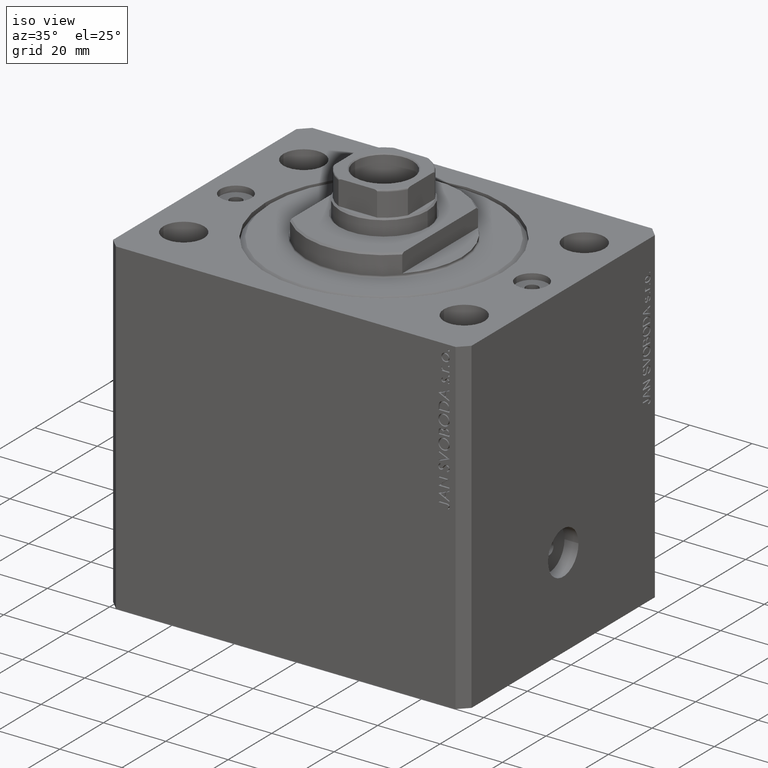
[diagram: clean part render]
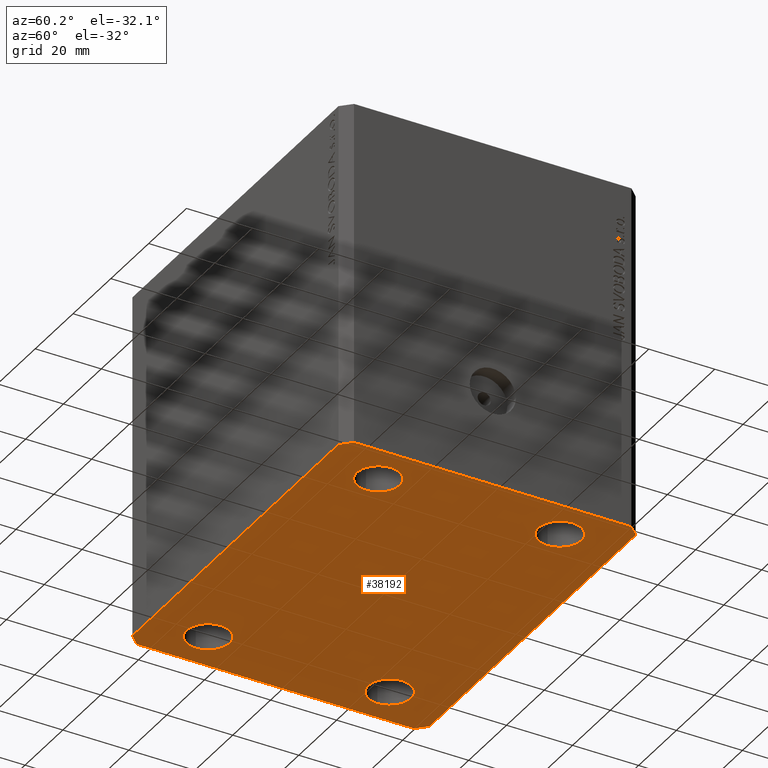
[diagram: tour spotlight — one face highlighted and labeled with its STEP entity id]
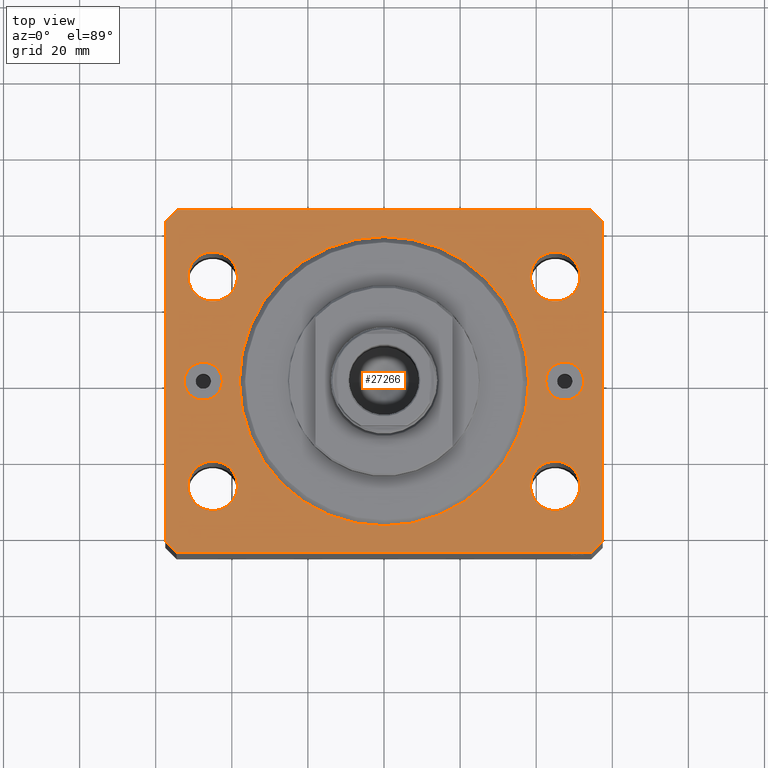
[diagram: tour spotlight — one face highlighted and labeled with its STEP entity id]
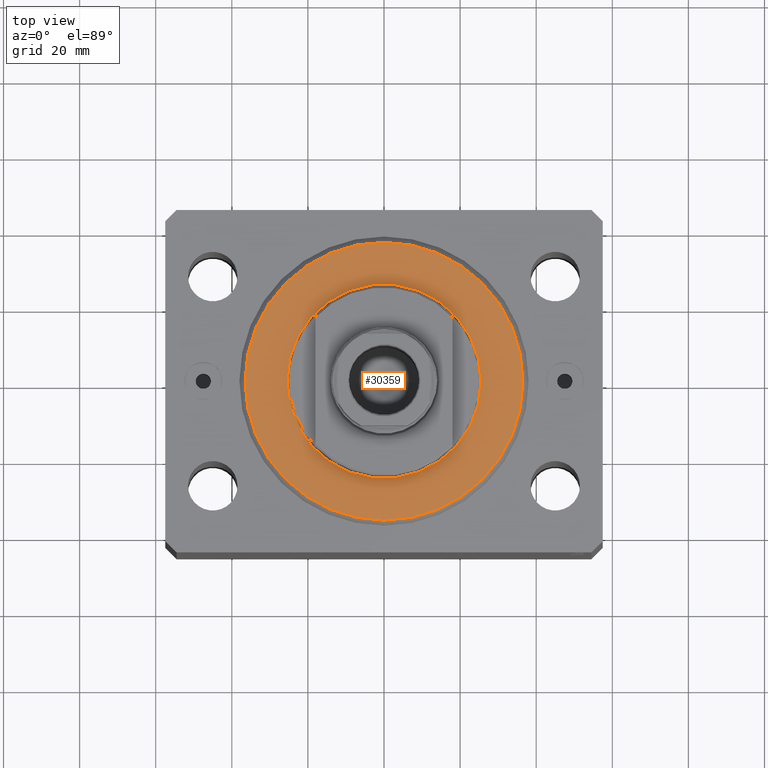
[diagram: tour spotlight — one face highlighted and labeled with its STEP entity id]
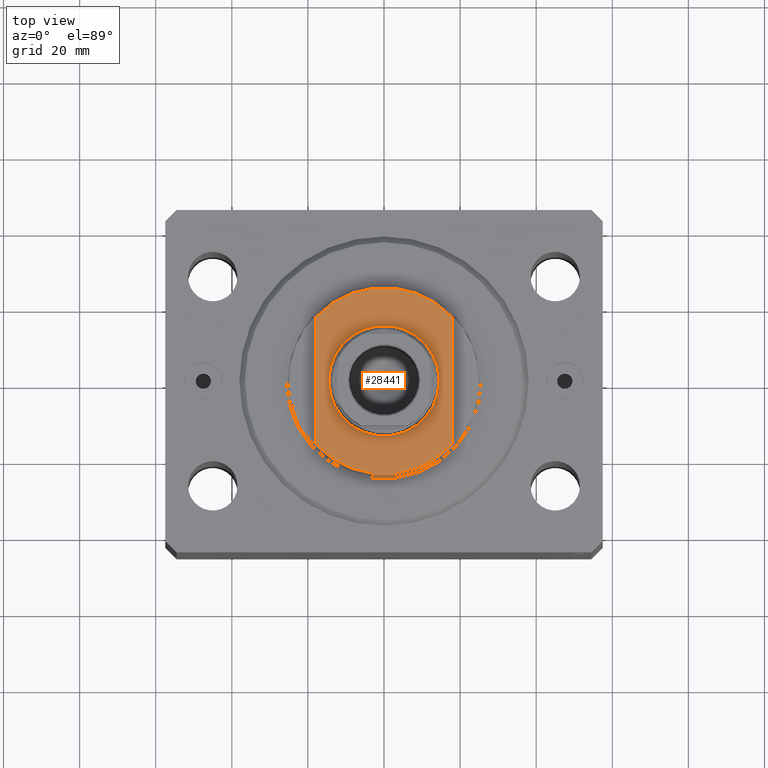
[diagram: tour spotlight — one face highlighted and labeled with its STEP entity id]
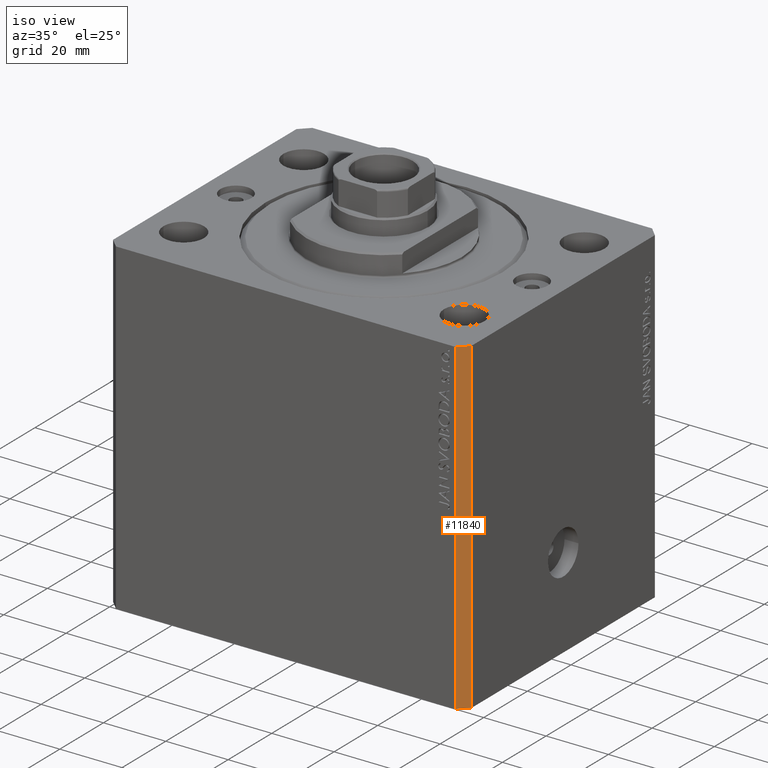
[diagram: tour spotlight — one face highlighted and labeled with its STEP entity id]
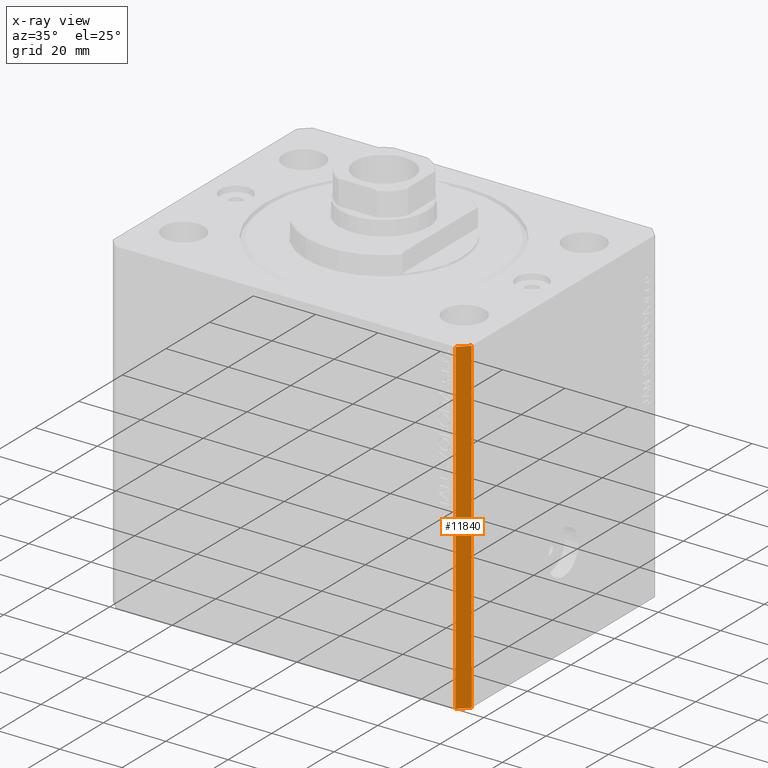
[diagram: x-ray of the same camera — body ghosted, this tour face saturated]
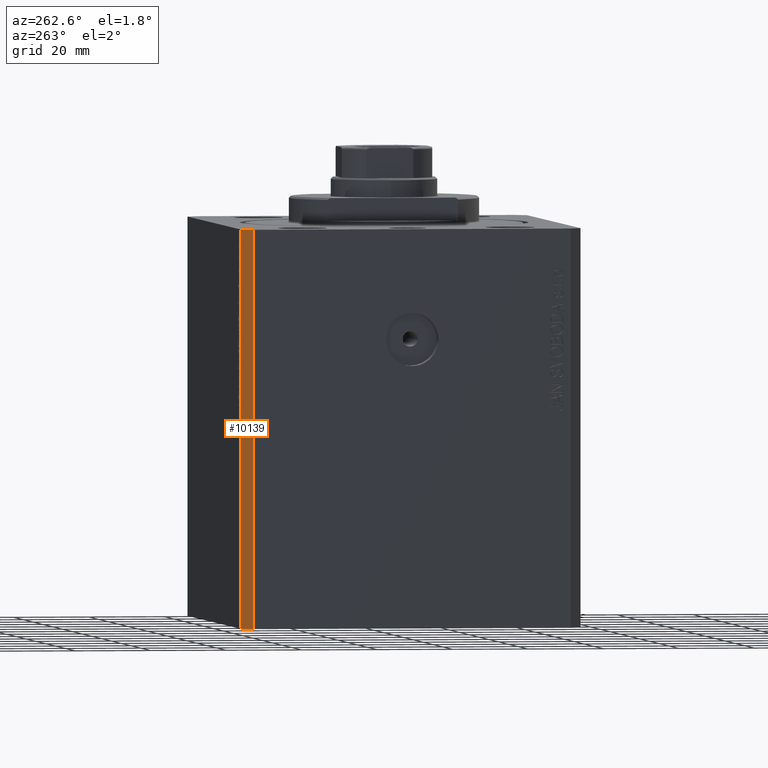
[diagram: tour spotlight — one face highlighted and labeled with its STEP entity id]
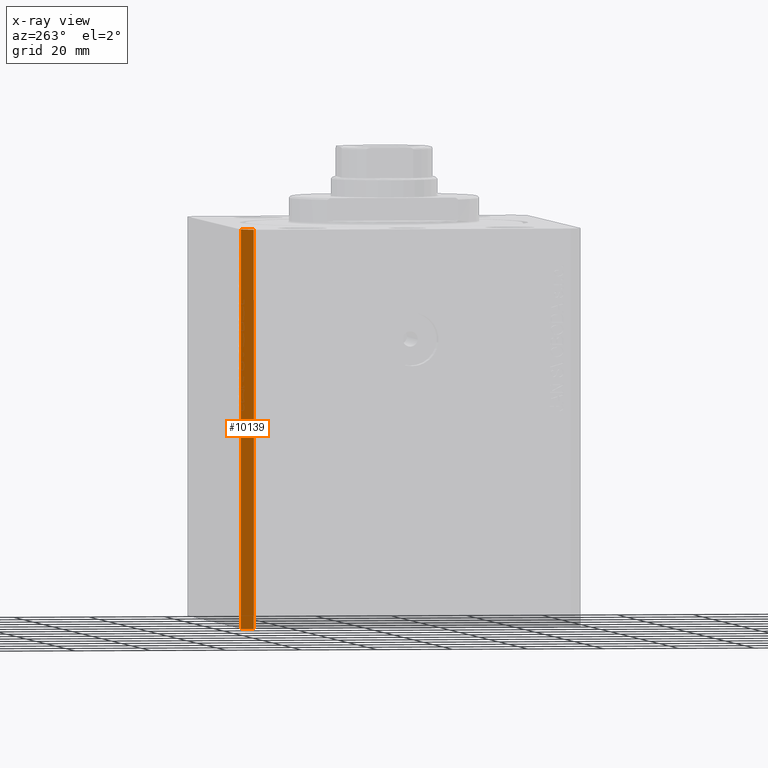
[diagram: x-ray of the same camera — body ghosted, this tour face saturated]
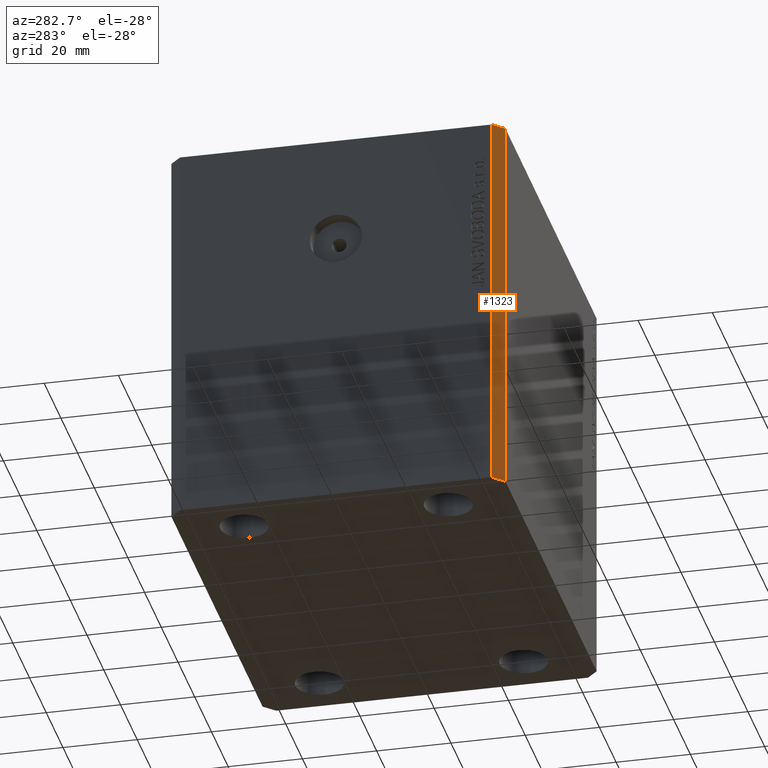
[diagram: tour spotlight — one face highlighted and labeled with its STEP entity id]
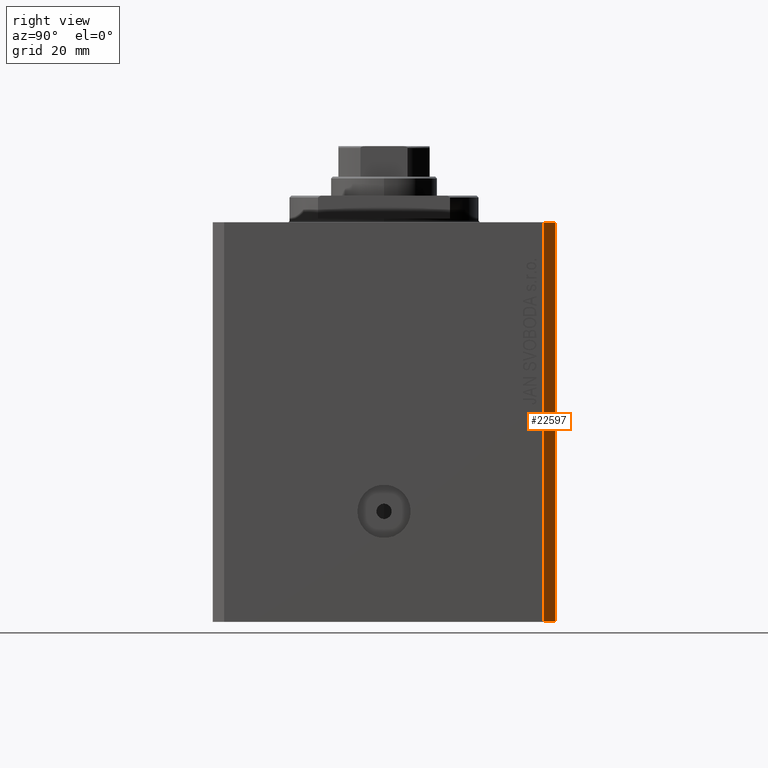
[diagram: tour spotlight — one face highlighted and labeled with its STEP entity id]
A machine part: a face-by-face anatomy tour. The part has 864 B-rep faces; the first image is the clean iso view, then the 8 largest visible faces are spotlighted one at a time (largest first), each with its STEP entity span.

Face 1 — auxiliary view, entity #38192. In plain terms, the highlighted planar face has unit normal (0, 0, 1).
Definition (entity closure, byte-faithful):
#327 = CIRCLE ( 'NONE', #41297, 6.499999999999999112 ) ;
#400 = EDGE_CURVE ( 'NONE', #7247, #11172, #11034, .T. ) ;
#498 = ORIENTED_EDGE ( 'NONE', *, *, #3355, .F. ) ;
#704 = VERTEX_POINT ( 'NONE', #23048 ) ;
#726 = VECTOR ( 'NONE', #38284, 1000.000000000000000 ) ;
#727 = LINE ( 'NONE', #7251, #17837 ) ;
#1185 = EDGE_CURVE ( 'NONE', #27263, #704, #8948, .T. ) ;
#1735 = DIRECTION ( 'NONE',  ( -0.000000000000000000, -0.000000000000000000, -1.000000000000000000 ) ) ;
#2196 = DIRECTION ( 'NONE',  ( -0.7071067811865369146, 0.7071067811865581199, 0.000000000000000000 ) ) ;
#2515 = VERTEX_POINT ( 'NONE', #8234 ) ;
#2905 = CARTESIAN_POINT ( 'NONE',  ( 45.00000000000000000, 27.49999999999999289, -105.0000000000000000 ) ) ;
#3206 = DIRECTION ( 'NONE',  ( 1.000000000000000000, 0.000000000000000000, 0.000000000000000000 ) ) ;
#3355 = EDGE_CURVE ( 'NONE', #14656, #39880, #13264, .T. ) ;
#3947 = FACE_OUTER_BOUND ( 'NONE', #7187, .T. ) ;
#4472 = CARTESIAN_POINT ( 'NONE',  ( -51.49999999999998579, -27.50000000000000355, -105.0000000000000000 ) ) ;
#5069 = CARTESIAN_POINT ( 'NONE',  ( -57.50000000000000711, -42.00000000000000711, -105.0000000000000000 ) ) ;
#5347 = LINE ( 'NONE', #19283, #33544 ) ;
#5822 = ORIENTED_EDGE ( 'NONE', *, *, #29806, .F. ) ;
#5866 = ORIENTED_EDGE ( 'NONE', *, *, #400, .F. ) ;
#6730 = ORIENTED_EDGE ( 'NONE', *, *, #11462, .F. ) ;
#6960 = CARTESIAN_POINT ( 'NONE',  ( 45.00000000000000000, 27.49999999999999289, -105.0000000000000000 ) ) ;
#7116 = DIRECTION ( 'NONE',  ( 1.000000000000000000, 0.000000000000000000, 0.000000000000000000 ) ) ;
#7187 = EDGE_LOOP ( 'NONE', ( #17640, #28319, #19253, #15829, #22296, #6730, #5822, #24768 ) ) ;
#7198 = CIRCLE ( 'NONE', #19449, 6.499999999999999112 ) ;
#7247 = VERTEX_POINT ( 'NONE', #21586 ) ;
#7251 = CARTESIAN_POINT ( 'NONE',  ( -54.49999999999999289, 45.00000000000000000, -105.0000000000000000 ) ) ;
#7389 = CARTESIAN_POINT ( 'NONE',  ( 57.50000000000000711, -41.99999999999998579, -105.0000000000000000 ) ) ;
#8018 = ORIENTED_EDGE ( 'NONE', *, *, #19653, .F. ) ;
#8234 = CARTESIAN_POINT ( 'NONE',  ( 38.50000000000000000, 27.49999999999999289, -105.0000000000000000 ) ) ;
#8948 = LINE ( 'NONE', #21783, #30448 ) ;
#9465 = DIRECTION ( 'NONE',  ( -0.000000000000000000, -0.000000000000000000, -1.000000000000000000 ) ) ;
#10458 = CARTESIAN_POINT ( 'NONE',  ( 51.49999999999998579, -27.50000000000000355, -105.0000000000000000 ) ) ;
#10759 = LINE ( 'NONE', #7389, #34900 ) ;
#11034 = CIRCLE ( 'NONE', #36189, 6.499999999999999112 ) ;
#11069 = EDGE_CURVE ( 'NONE', #31239, #28088, #327, .T. ) ;
#11172 = VERTEX_POINT ( 'NONE', #10458 ) ;
#11353 = FACE_BOUND ( 'NONE', #20729, .T. ) ;
#11462 = EDGE_CURVE ( 'NONE', #40093, #25466, #41233, .T. ) ;
#11769 = VERTEX_POINT ( 'NONE', #31882 ) ;
#12516 = EDGE_LOOP ( 'NONE', ( #42473, #498 ) ) ;
#12528 = CARTESIAN_POINT ( 'NONE',  ( -44.99999999999998579, -27.50000000000000355, -105.0000000000000000 ) ) ;
#13264 = CIRCLE ( 'NONE', #32544, 6.499999999999999112 ) ;
#13613 = VECTOR ( 'NONE', #19161, 1000.000000000000000 ) ;
#13995 = LINE ( 'NONE', #20529, #726 ) ;
#14508 = DIRECTION ( 'NONE',  ( 0.000000000000000000, 0.000000000000000000, 1.000000000000000000 ) ) ;
#14656 = VERTEX_POINT ( 'NONE', #32164 ) ;
#14844 = EDGE_CURVE ( 'NONE', #704, #17978, #10759, .T. ) ;
#15295 = EDGE_CURVE ( 'NONE', #28088, #31239, #37793, .T. ) ;
#15673 = DIRECTION ( 'NONE',  ( 1.000000000000000000, 0.000000000000000000, 0.000000000000000000 ) ) ;
#15829 = ORIENTED_EDGE ( 'NONE', *, *, #1185, .F. ) ;
#16188 = DIRECTION ( 'NONE',  ( -0.000000000000000000, -0.000000000000000000, -1.000000000000000000 ) ) ;
#16453 = AXIS2_PLACEMENT_3D ( 'NONE', #2905, #16188, #40257 ) ;
#17640 = ORIENTED_EDGE ( 'NONE', *, *, #43596, .F. ) ;
#17668 = CIRCLE ( 'NONE', #23420, 6.499999999999999112 ) ;
#17837 = VECTOR ( 'NONE', #31072, 1000.000000000000000 ) ;
#17978 = VERTEX_POINT ( 'NONE', #43043 ) ;
#18853 = DIRECTION ( 'NONE',  ( 0.7071067811865483499, 0.7071067811865466846, 0.000000000000000000 ) ) ;
#19025 = VECTOR ( 'NONE', #34017, 1000.000000000000114 ) ;
#19161 = DIRECTION ( 'NONE',  ( -2.478176394252581141E-16, -1.000000000000000000, 0.000000000000000000 ) ) ;
#19253 = ORIENTED_EDGE ( 'NONE', *, *, #14844, .F. ) ;
#19283 = CARTESIAN_POINT ( 'NONE',  ( 57.50000000000055422, 41.99999999999997868, -105.0000000000000000 ) ) ;
#19449 = AXIS2_PLACEMENT_3D ( 'NONE', #21112, #25155, #28084 ) ;
#19653 = EDGE_CURVE ( 'NONE', #11172, #7247, #17668, .T. ) ;
#20520 = LINE ( 'NONE', #41204, #33835 ) ;
#20529 = CARTESIAN_POINT ( 'NONE',  ( -54.50000000000000711, -45.00000000000000000, -105.0000000000000000 ) ) ;
#20729 = EDGE_LOOP ( 'NONE', ( #23278, #21280 ) ) ;
#21029 = FACE_BOUND ( 'NONE', #26494, .T. ) ;
#21099 = CARTESIAN_POINT ( 'NONE',  ( 54.50000000000000711, -44.99999999999998579, -105.0000000000000000 ) ) ;
#21112 = CARTESIAN_POINT ( 'NONE',  ( -45.00000000000000000, 27.49999999999999645, -105.0000000000000000 ) ) ;
#21280 = ORIENTED_EDGE ( 'NONE', *, *, #15295, .F. ) ;
#21586 = CARTESIAN_POINT ( 'NONE',  ( 38.49999999999998579, -27.50000000000000355, -105.0000000000000000 ) ) ;
#21783 = CARTESIAN_POINT ( 'NONE',  ( 54.50000000000000711, -44.99999999999998579, -105.0000000000000000 ) ) ;
#22151 = CARTESIAN_POINT ( 'NONE',  ( 54.50000000000059686, 45.00000000000002842, -105.0000000000000000 ) ) ;
#22296 = ORIENTED_EDGE ( 'NONE', *, *, #40182, .F. ) ;
#22646 = CARTESIAN_POINT ( 'NONE',  ( -38.50000000000000000, 27.49999999999999645, -105.0000000000000000 ) ) ;
#23048 = CARTESIAN_POINT ( 'NONE',  ( 57.50000000000000711, -41.99999999999998579, -105.0000000000000000 ) ) ;
#23278 = ORIENTED_EDGE ( 'NONE', *, *, #11069, .F. ) ;
#23420 = AXIS2_PLACEMENT_3D ( 'NONE', #36136, #1735, #15673 ) ;
#23505 = EDGE_CURVE ( 'NONE', #17978, #27591, #5347, .T. ) ;
#24768 = ORIENTED_EDGE ( 'NONE', *, *, #26147, .F. ) ;
#25064 = FACE_BOUND ( 'NONE', #38158, .T. ) ;
#25155 = DIRECTION ( 'NONE',  ( -0.000000000000000000, -0.000000000000000000, -1.000000000000000000 ) ) ;
#25233 = EDGE_CURVE ( 'NONE', #2515, #44342, #42957, .T. ) ;
#25466 = VERTEX_POINT ( 'NONE', #28760 ) ;
#26147 = EDGE_CURVE ( 'NONE', #11769, #33090, #727, .T. ) ;
#26236 = DIRECTION ( 'NONE',  ( -0.000000000000000000, -0.000000000000000000, -1.000000000000000000 ) ) ;
#26494 = EDGE_LOOP ( 'NONE', ( #36217, #31663 ) ) ;
#26600 = CARTESIAN_POINT ( 'NONE',  ( -44.99999999999998579, -27.50000000000000355, -105.0000000000000000 ) ) ;
#27111 = EDGE_CURVE ( 'NONE', #44342, #2515, #35834, .T. ) ;
#27263 = VERTEX_POINT ( 'NONE', #21099 ) ;
#27591 = VERTEX_POINT ( 'NONE', #22151 ) ;
#28084 = DIRECTION ( 'NONE',  ( 1.000000000000000000, 0.000000000000000000, 0.000000000000000000 ) ) ;
#28088 = VERTEX_POINT ( 'NONE', #4472 ) ;
#28215 = DIRECTION ( 'NONE',  ( 1.000000000000000000, 0.000000000000000000, -0.000000000000000000 ) ) ;
#28289 = DIRECTION ( 'NONE',  ( 1.000000000000000000, 0.000000000000000000, 0.000000000000000000 ) ) ;
#28319 = ORIENTED_EDGE ( 'NONE', *, *, #23505, .F. ) ;
#28760 = CARTESIAN_POINT ( 'NONE',  ( -54.50000000000000711, -45.00000000000000000, -105.0000000000000000 ) ) ;
#28826 = LINE ( 'NONE', #39185, #13613 ) ;
#29806 = EDGE_CURVE ( 'NONE', #33090, #40093, #28826, .T. ) ;
#30233 = AXIS2_PLACEMENT_3D ( 'NONE', #38793, #14508, #28215 ) ;
#30448 = VECTOR ( 'NONE', #18853, 1000.000000000000000 ) ;
#31072 = DIRECTION ( 'NONE',  ( -0.7071067811865483499, -0.7071067811865466846, 0.000000000000000000 ) ) ;
#31239 = VERTEX_POINT ( 'NONE', #31648 ) ;
#31648 = CARTESIAN_POINT ( 'NONE',  ( -38.49999999999998579, -27.50000000000000355, -105.0000000000000000 ) ) ;
#31663 = ORIENTED_EDGE ( 'NONE', *, *, #25233, .F. ) ;
#31882 = CARTESIAN_POINT ( 'NONE',  ( -54.49999999999999289, 45.00000000000000000, -105.0000000000000000 ) ) ;
#32164 = CARTESIAN_POINT ( 'NONE',  ( -51.50000000000000000, 27.49999999999999645, -105.0000000000000000 ) ) ;
#32544 = AXIS2_PLACEMENT_3D ( 'NONE', #44006, #37263, #7116 ) ;
#33090 = VERTEX_POINT ( 'NONE', #43612 ) ;
#33544 = VECTOR ( 'NONE', #2196, 1000.000000000000000 ) ;
#33568 = DIRECTION ( 'NONE',  ( -1.000000000000000000, -2.546383084002638829E-16, 0.000000000000000000 ) ) ;
#33835 = VECTOR ( 'NONE', #33568, 1000.000000000000000 ) ;
#34017 = DIRECTION ( 'NONE',  ( 0.7071067811865491270, -0.7071067811865459074, 0.000000000000000000 ) ) ;
#34465 = CARTESIAN_POINT ( 'NONE',  ( -57.50000000000000711, -42.00000000000000711, -105.0000000000000000 ) ) ;
#34590 = DIRECTION ( 'NONE',  ( 6.443258625056715108E-15, 1.000000000000000000, 0.000000000000000000 ) ) ;
#34900 = VECTOR ( 'NONE', #34590, 1000.000000000000000 ) ;
#35410 = PLANE ( 'NONE',  #30233 ) ;
#35834 = CIRCLE ( 'NONE', #16453, 6.499999999999999112 ) ;
#35928 = DIRECTION ( 'NONE',  ( -0.000000000000000000, -0.000000000000000000, -1.000000000000000000 ) ) ;
#36136 = CARTESIAN_POINT ( 'NONE',  ( 44.99999999999998579, -27.50000000000000355, -105.0000000000000000 ) ) ;
#36189 = AXIS2_PLACEMENT_3D ( 'NONE', #39531, #35928, #28289 ) ;
#36217 = ORIENTED_EDGE ( 'NONE', *, *, #27111, .F. ) ;
#36517 = AXIS2_PLACEMENT_3D ( 'NONE', #6960, #9465, #40930 ) ;
#37263 = DIRECTION ( 'NONE',  ( -0.000000000000000000, -0.000000000000000000, -1.000000000000000000 ) ) ;
#37793 = CIRCLE ( 'NONE', #39252, 6.499999999999999112 ) ;
#38158 = EDGE_LOOP ( 'NONE', ( #8018, #5866 ) ) ;
#38192 = ADVANCED_FACE ( 'NONE', ( #11353, #25064, #21029, #38345, #3947 ), #35410, .F. ) ;
#38284 = DIRECTION ( 'NONE',  ( 1.000000000000000000, 1.273191542001326317E-16, 0.000000000000000000 ) ) ;
#38345 = FACE_BOUND ( 'NONE', #12516, .T. ) ;
#38793 = CARTESIAN_POINT ( 'NONE',  ( 0.000000000000000000, 0.000000000000000000, -105.0000000000000000 ) ) ;
#39185 = CARTESIAN_POINT ( 'NONE',  ( -57.49999999999998579, 42.00000000000000711, -105.0000000000000000 ) ) ;
#39252 = AXIS2_PLACEMENT_3D ( 'NONE', #26600, #43909, #3206 ) ;
#39531 = CARTESIAN_POINT ( 'NONE',  ( 44.99999999999998579, -27.50000000000000355, -105.0000000000000000 ) ) ;
#39880 = VERTEX_POINT ( 'NONE', #22646 ) ;
#39974 = DIRECTION ( 'NONE',  ( 1.000000000000000000, 0.000000000000000000, 0.000000000000000000 ) ) ;
#40093 = VERTEX_POINT ( 'NONE', #5069 ) ;
#40182 = EDGE_CURVE ( 'NONE', #25466, #27263, #13995, .T. ) ;
#40257 = DIRECTION ( 'NONE',  ( 1.000000000000000000, 0.000000000000000000, 0.000000000000000000 ) ) ;
#40930 = DIRECTION ( 'NONE',  ( 1.000000000000000000, 0.000000000000000000, 0.000000000000000000 ) ) ;
#41204 = CARTESIAN_POINT ( 'NONE',  ( 54.50000000000059686, 45.00000000000002842, -105.0000000000000000 ) ) ;
#41233 = LINE ( 'NONE', #34465, #19025 ) ;
#41268 = CARTESIAN_POINT ( 'NONE',  ( 51.50000000000000000, 27.49999999999999289, -105.0000000000000000 ) ) ;
#41297 = AXIS2_PLACEMENT_3D ( 'NONE', #12528, #26236, #39974 ) ;
#41483 = EDGE_CURVE ( 'NONE', #39880, #14656, #7198, .T. ) ;
#42473 = ORIENTED_EDGE ( 'NONE', *, *, #41483, .F. ) ;
#42957 = CIRCLE ( 'NONE', #36517, 6.499999999999999112 ) ;
#43043 = CARTESIAN_POINT ( 'NONE',  ( 57.50000000000055422, 41.99999999999997868, -105.0000000000000000 ) ) ;
#43596 = EDGE_CURVE ( 'NONE', #27591, #11769, #20520, .T. ) ;
#43612 = CARTESIAN_POINT ( 'NONE',  ( -57.49999999999998579, 42.00000000000000711, -105.0000000000000000 ) ) ;
#43909 = DIRECTION ( 'NONE',  ( -0.000000000000000000, -0.000000000000000000, -1.000000000000000000 ) ) ;
#44006 = CARTESIAN_POINT ( 'NONE',  ( -45.00000000000000000, 27.49999999999999645, -105.0000000000000000 ) ) ;
#44342 = VERTEX_POINT ( 'NONE', #41268 ) ;

Face 2 — top view, entity #27266. In plain terms, the highlighted planar face has unit normal (0, 0, 1).
Definition (entity closure, byte-faithful):
#398 = FACE_BOUND ( 'NONE', #16492, .T. ) ;
#408 = DIRECTION ( 'NONE',  ( 1.000000000000000000, 0.000000000000000000, 0.000000000000000000 ) ) ;
#630 = PLANE ( 'NONE',  #25743 ) ;
#709 = ORIENTED_EDGE ( 'NONE', *, *, #7316, .F. ) ;
#1265 = CARTESIAN_POINT ( 'NONE',  ( 52.50000000000000000, 0.000000000000000000, 0.000000000000000000 ) ) ;
#1296 = DIRECTION ( 'NONE',  ( -1.000000000000000000, -2.546383084002638829E-16, 0.000000000000000000 ) ) ;
#1517 = CARTESIAN_POINT ( 'NONE',  ( 54.50000000000059686, 45.00000000000002842, 0.000000000000000000 ) ) ;
#1687 = CIRCLE ( 'NONE', #21789, 6.499999999999999112 ) ;
#1930 = VERTEX_POINT ( 'NONE', #16041 ) ;
#2218 = ORIENTED_EDGE ( 'NONE', *, *, #24835, .F. ) ;
#2423 = AXIS2_PLACEMENT_3D ( 'NONE', #25043, #41925, #24595 ) ;
#2528 = CIRCLE ( 'NONE', #20467, 4.999999999999997335 ) ;
#2663 = EDGE_LOOP ( 'NONE', ( #22671, #10102 ) ) ;
#2699 = EDGE_CURVE ( 'NONE', #43728, #5801, #42599, .T. ) ;
#2862 = AXIS2_PLACEMENT_3D ( 'NONE', #4897, #15452, #18612 ) ;
#3081 = DIRECTION ( 'NONE',  ( 1.000000000000000000, 0.000000000000000000, 0.000000000000000000 ) ) ;
#3347 = DIRECTION ( 'NONE',  ( 0.000000000000000000, 0.000000000000000000, 1.000000000000000000 ) ) ;
#3952 = DIRECTION ( 'NONE',  ( -0.7071067811865369146, 0.7071067811865581199, 0.000000000000000000 ) ) ;
#4015 = FACE_BOUND ( 'NONE', #5535, .T. ) ;
#4225 = CARTESIAN_POINT ( 'NONE',  ( 38.00000000000000000, 0.000000000000000000, 0.000000000000000000 ) ) ;
#4897 = CARTESIAN_POINT ( 'NONE',  ( 47.50000000000000000, 0.000000000000000000, 0.000000000000000000 ) ) ;
#5084 = CIRCLE ( 'NONE', #18729, 6.499999999999999112 ) ;
#5222 = CARTESIAN_POINT ( 'NONE',  ( -57.50000000000000711, -42.00000000000000711, 0.000000000000000000 ) ) ;
#5263 = DIRECTION ( 'NONE',  ( 1.000000000000000000, 0.000000000000000000, 0.000000000000000000 ) ) ;
#5535 = EDGE_LOOP ( 'NONE', ( #28155, #15886 ) ) ;
#5801 = VERTEX_POINT ( 'NONE', #1265 ) ;
#6243 = VERTEX_POINT ( 'NONE', #38949 ) ;
#6495 = EDGE_CURVE ( 'NONE', #29872, #10492, #32531, .T. ) ;
#6706 = EDGE_CURVE ( 'NONE', #28200, #9058, #42589, .T. ) ;
#6764 = ORIENTED_EDGE ( 'NONE', *, *, #43409, .T. ) ;
#6965 = EDGE_CURVE ( 'NONE', #22736, #29275, #11293, .T. ) ;
#7051 = ORIENTED_EDGE ( 'NONE', *, *, #18905, .T. ) ;
#7312 = CARTESIAN_POINT ( 'NONE',  ( 57.50000000000055422, 41.99999999999997868, 0.000000000000000000 ) ) ;
#7316 = EDGE_CURVE ( 'NONE', #42090, #33610, #1687, .T. ) ;
#7372 = DIRECTION ( 'NONE',  ( 1.000000000000000000, 0.000000000000000000, 0.000000000000000000 ) ) ;
#7519 = CARTESIAN_POINT ( 'NONE',  ( 57.50000000000000711, -41.99999999999998579, 0.000000000000000000 ) ) ;
#7600 = CARTESIAN_POINT ( 'NONE',  ( -47.50000000000000000, 0.000000000000000000, 0.000000000000000000 ) ) ;
#7744 = LINE ( 'NONE', #7519, #23074 ) ;
#8193 = CARTESIAN_POINT ( 'NONE',  ( -47.50000000000000000, 0.000000000000000000, 0.000000000000000000 ) ) ;
#8272 = DIRECTION ( 'NONE',  ( 0.000000000000000000, 0.000000000000000000, 1.000000000000000000 ) ) ;
#8337 = EDGE_CURVE ( 'NONE', #13200, #36496, #36198, .T. ) ;
#8523 = CARTESIAN_POINT ( 'NONE',  ( -57.49999999999998579, 42.00000000000000711, 0.000000000000000000 ) ) ;
#8963 = EDGE_LOOP ( 'NONE', ( #21515, #34487 ) ) ;
#9058 = VERTEX_POINT ( 'NONE', #34591 ) ;
#9463 = ORIENTED_EDGE ( 'NONE', *, *, #27795, .F. ) ;
#10102 = ORIENTED_EDGE ( 'NONE', *, *, #35999, .F. ) ;
#10345 = CARTESIAN_POINT ( 'NONE',  ( 38.49999999999998579, -27.50000000000000355, 0.000000000000000000 ) ) ;
#10430 = AXIS2_PLACEMENT_3D ( 'NONE', #29378, #25567, #15906 ) ;
#10460 = VECTOR ( 'NONE', #14678, 1000.000000000000114 ) ;
#10492 = VERTEX_POINT ( 'NONE', #10345 ) ;
#10853 = EDGE_CURVE ( 'NONE', #9058, #28200, #2528, .T. ) ;
#10855 = LINE ( 'NONE', #38971, #33744 ) ;
#11293 = LINE ( 'NONE', #25005, #11736 ) ;
#11736 = VECTOR ( 'NONE', #17376, 1000.000000000000000 ) ;
#12058 = DIRECTION ( 'NONE',  ( 1.000000000000000000, 0.000000000000000000, 0.000000000000000000 ) ) ;
#12155 = ORIENTED_EDGE ( 'NONE', *, *, #25480, .F. ) ;
#12250 = DIRECTION ( 'NONE',  ( 0.000000000000000000, 0.000000000000000000, 1.000000000000000000 ) ) ;
#12629 = ORIENTED_EDGE ( 'NONE', *, *, #38807, .T. ) ;
#12946 = CIRCLE ( 'NONE', #17959, 6.499999999999999112 ) ;
#13200 = VERTEX_POINT ( 'NONE', #13469 ) ;
#13469 = CARTESIAN_POINT ( 'NONE',  ( -38.00000000000000000, 4.653657836759941941E-15, 0.000000000000000000 ) ) ;
#14123 = FACE_BOUND ( 'NONE', #2663, .T. ) ;
#14678 = DIRECTION ( 'NONE',  ( 0.7071067811865491270, -0.7071067811865459074, 0.000000000000000000 ) ) ;
#14685 = DIRECTION ( 'NONE',  ( 1.000000000000000000, 1.273191542001326317E-16, 0.000000000000000000 ) ) ;
#14827 = DIRECTION ( 'NONE',  ( 1.000000000000000000, 0.000000000000000000, 0.000000000000000000 ) ) ;
#15223 = CARTESIAN_POINT ( 'NONE',  ( 45.00000000000000000, 27.49999999999999289, 0.000000000000000000 ) ) ;
#15452 = DIRECTION ( 'NONE',  ( 0.000000000000000000, -0.000000000000000000, -1.000000000000000000 ) ) ;
#15714 = CARTESIAN_POINT ( 'NONE',  ( -45.00000000000000000, 27.49999999999999645, 0.000000000000000000 ) ) ;
#15886 = ORIENTED_EDGE ( 'NONE', *, *, #10853, .F. ) ;
#15906 = DIRECTION ( 'NONE',  ( 1.000000000000000000, 0.000000000000000000, 0.000000000000000000 ) ) ;
#16041 = CARTESIAN_POINT ( 'NONE',  ( 38.50000000000000000, 27.49999999999999289, 0.000000000000000000 ) ) ;
#16109 = EDGE_LOOP ( 'NONE', ( #12629, #22070, #33220, #7051, #25158, #30625, #6764, #39610 ) ) ;
#16438 = CARTESIAN_POINT ( 'NONE',  ( -51.49999999999998579, -27.50000000000000355, 0.000000000000000000 ) ) ;
#16492 = EDGE_LOOP ( 'NONE', ( #12155, #709 ) ) ;
#16620 = CARTESIAN_POINT ( 'NONE',  ( -57.49999999999998579, 42.00000000000000711, 0.000000000000000000 ) ) ;
#16747 = AXIS2_PLACEMENT_3D ( 'NONE', #35730, #24941, #14827 ) ;
#16846 = CARTESIAN_POINT ( 'NONE',  ( 45.00000000000000000, 27.49999999999999289, 0.000000000000000000 ) ) ;
#16885 = DIRECTION ( 'NONE',  ( 1.000000000000000000, 0.000000000000000000, 0.000000000000000000 ) ) ;
#17115 = CIRCLE ( 'NONE', #40128, 6.499999999999999112 ) ;
#17376 = DIRECTION ( 'NONE',  ( -0.7071067811865483499, -0.7071067811865466846, 0.000000000000000000 ) ) ;
#17377 = EDGE_CURVE ( 'NONE', #43365, #6243, #42503, .T. ) ;
#17425 = EDGE_CURVE ( 'NONE', #29275, #30446, #26507, .T. ) ;
#17512 = CARTESIAN_POINT ( 'NONE',  ( 0.000000000000000000, 0.000000000000000000, 0.000000000000000000 ) ) ;
#17626 = EDGE_CURVE ( 'NONE', #36496, #13200, #24120, .T. ) ;
#17731 = FACE_BOUND ( 'NONE', #44445, .T. ) ;
#17882 = EDGE_CURVE ( 'NONE', #40388, #35219, #17888, .T. ) ;
#17888 = LINE ( 'NONE', #7312, #33425 ) ;
#17959 = AXIS2_PLACEMENT_3D ( 'NONE', #15223, #22405, #12058 ) ;
#18064 = LINE ( 'NONE', #5222, #10460 ) ;
#18214 = CARTESIAN_POINT ( 'NONE',  ( 54.50000000000059686, 45.00000000000002842, 0.000000000000000000 ) ) ;
#18321 = DIRECTION ( 'NONE',  ( 6.443258625056715108E-15, 1.000000000000000000, 0.000000000000000000 ) ) ;
#18612 = DIRECTION ( 'NONE',  ( 1.000000000000000000, 0.000000000000000000, 0.000000000000000000 ) ) ;
#18729 = AXIS2_PLACEMENT_3D ( 'NONE', #23624, #44082, #16885 ) ;
#18877 = VECTOR ( 'NONE', #1296, 1000.000000000000000 ) ;
#18886 = CARTESIAN_POINT ( 'NONE',  ( 54.50000000000000711, -44.99999999999998579, 0.000000000000000000 ) ) ;
#18905 = EDGE_CURVE ( 'NONE', #30446, #27466, #18064, .T. ) ;
#19618 = CARTESIAN_POINT ( 'NONE',  ( 57.50000000000055422, 41.99999999999997868, 0.000000000000000000 ) ) ;
#20467 = AXIS2_PLACEMENT_3D ( 'NONE', #7600, #34343, #7372 ) ;
#20875 = FACE_OUTER_BOUND ( 'NONE', #16109, .T. ) ;
#21105 = AXIS2_PLACEMENT_3D ( 'NONE', #17512, #31213, #408 ) ;
#21515 = ORIENTED_EDGE ( 'NONE', *, *, #35694, .F. ) ;
#21789 = AXIS2_PLACEMENT_3D ( 'NONE', #26725, #40669, #40453 ) ;
#21914 = DIRECTION ( 'NONE',  ( 0.000000000000000000, 0.000000000000000000, 1.000000000000000000 ) ) ;
#22070 = ORIENTED_EDGE ( 'NONE', *, *, #6965, .T. ) ;
#22256 = CIRCLE ( 'NONE', #2862, 4.999999999999997335 ) ;
#22405 = DIRECTION ( 'NONE',  ( 0.000000000000000000, 0.000000000000000000, 1.000000000000000000 ) ) ;
#22671 = ORIENTED_EDGE ( 'NONE', *, *, #6495, .F. ) ;
#22701 = DIRECTION ( 'NONE',  ( 0.7071067811865483499, 0.7071067811865466846, 0.000000000000000000 ) ) ;
#22736 = VERTEX_POINT ( 'NONE', #34014 ) ;
#22835 = AXIS2_PLACEMENT_3D ( 'NONE', #44002, #26917, #3081 ) ;
#23074 = VECTOR ( 'NONE', #18321, 1000.000000000000000 ) ;
#23176 = ORIENTED_EDGE ( 'NONE', *, *, #30393, .T. ) ;
#23202 = AXIS2_PLACEMENT_3D ( 'NONE', #8193, #21914, #5263 ) ;
#23254 = EDGE_CURVE ( 'NONE', #1930, #28381, #36457, .T. ) ;
#23624 = CARTESIAN_POINT ( 'NONE',  ( 44.99999999999998579, -27.50000000000000355, 0.000000000000000000 ) ) ;
#24076 = CARTESIAN_POINT ( 'NONE',  ( -44.99999999999998579, -27.50000000000000355, 0.000000000000000000 ) ) ;
#24120 = CIRCLE ( 'NONE', #10430, 38.00000000000000000 ) ;
#24595 = DIRECTION ( 'NONE',  ( 1.000000000000000000, 0.000000000000000000, 0.000000000000000000 ) ) ;
#24690 = FACE_BOUND ( 'NONE', #8963, .T. ) ;
#24835 = EDGE_CURVE ( 'NONE', #32352, #25264, #42234, .T. ) ;
#24941 = DIRECTION ( 'NONE',  ( 0.000000000000000000, 0.000000000000000000, 1.000000000000000000 ) ) ;
#25005 = CARTESIAN_POINT ( 'NONE',  ( -54.49999999999999289, 45.00000000000000000, 0.000000000000000000 ) ) ;
#25043 = CARTESIAN_POINT ( 'NONE',  ( 47.50000000000000000, 0.000000000000000000, 0.000000000000000000 ) ) ;
#25158 = ORIENTED_EDGE ( 'NONE', *, *, #39577, .T. ) ;
#25264 = VERTEX_POINT ( 'NONE', #16438 ) ;
#25364 = CARTESIAN_POINT ( 'NONE',  ( -42.50000000000000000, 0.000000000000000000, 0.000000000000000000 ) ) ;
#25480 = EDGE_CURVE ( 'NONE', #33610, #42090, #17115, .T. ) ;
#25567 = DIRECTION ( 'NONE',  ( 0.000000000000000000, 0.000000000000000000, 1.000000000000000000 ) ) ;
#25743 = AXIS2_PLACEMENT_3D ( 'NONE', #42888, #8272, #39305 ) ;
#26274 = VECTOR ( 'NONE', #30097, 1000.000000000000000 ) ;
#26507 = LINE ( 'NONE', #16620, #26274 ) ;
#26725 = CARTESIAN_POINT ( 'NONE',  ( -45.00000000000000000, 27.49999999999999645, 0.000000000000000000 ) ) ;
#26917 = DIRECTION ( 'NONE',  ( 0.000000000000000000, 0.000000000000000000, 1.000000000000000000 ) ) ;
#27266 = ADVANCED_FACE ( 'NONE', ( #20875, #398, #24690, #14123, #38417, #34802, #4015, #17731 ), #630, .T. ) ;
#27406 = CARTESIAN_POINT ( 'NONE',  ( -38.50000000000000000, 27.49999999999999645, 0.000000000000000000 ) ) ;
#27466 = VERTEX_POINT ( 'NONE', #39979 ) ;
#27674 = VECTOR ( 'NONE', #22701, 1000.000000000000000 ) ;
#27795 = EDGE_CURVE ( 'NONE', #25264, #32352, #40840, .T. ) ;
#27981 = CARTESIAN_POINT ( 'NONE',  ( 54.50000000000000711, -44.99999999999998579, 0.000000000000000000 ) ) ;
#28155 = ORIENTED_EDGE ( 'NONE', *, *, #6706, .F. ) ;
#28200 = VERTEX_POINT ( 'NONE', #25364 ) ;
#28381 = VERTEX_POINT ( 'NONE', #34751 ) ;
#28647 = AXIS2_PLACEMENT_3D ( 'NONE', #24076, #12250, #37801 ) ;
#28698 = ORIENTED_EDGE ( 'NONE', *, *, #17626, .F. ) ;
#29021 = CARTESIAN_POINT ( 'NONE',  ( -51.50000000000000000, 27.49999999999999645, 0.000000000000000000 ) ) ;
#29275 = VERTEX_POINT ( 'NONE', #8523 ) ;
#29378 = CARTESIAN_POINT ( 'NONE',  ( 0.000000000000000000, 0.000000000000000000, 0.000000000000000000 ) ) ;
#29481 = CARTESIAN_POINT ( 'NONE',  ( 42.50000000000000000, 6.123233995736762338E-16, 0.000000000000000000 ) ) ;
#29872 = VERTEX_POINT ( 'NONE', #36242 ) ;
#30097 = DIRECTION ( 'NONE',  ( -2.478176394252581141E-16, -1.000000000000000000, 0.000000000000000000 ) ) ;
#30393 = EDGE_CURVE ( 'NONE', #5801, #43728, #22256, .T. ) ;
#30446 = VERTEX_POINT ( 'NONE', #43098 ) ;
#30625 = ORIENTED_EDGE ( 'NONE', *, *, #17377, .T. ) ;
#31213 = DIRECTION ( 'NONE',  ( 0.000000000000000000, 0.000000000000000000, 1.000000000000000000 ) ) ;
#32352 = VERTEX_POINT ( 'NONE', #37457 ) ;
#32531 = CIRCLE ( 'NONE', #16747, 6.499999999999999112 ) ;
#33220 = ORIENTED_EDGE ( 'NONE', *, *, #17425, .T. ) ;
#33425 = VECTOR ( 'NONE', #3952, 1000.000000000000000 ) ;
#33457 = ORIENTED_EDGE ( 'NONE', *, *, #2699, .T. ) ;
#33610 = VERTEX_POINT ( 'NONE', #27406 ) ;
#33744 = VECTOR ( 'NONE', #14685, 1000.000000000000000 ) ;
#34014 = CARTESIAN_POINT ( 'NONE',  ( -54.49999999999999289, 45.00000000000000000, 0.000000000000000000 ) ) ;
#34343 = DIRECTION ( 'NONE',  ( 0.000000000000000000, 0.000000000000000000, 1.000000000000000000 ) ) ;
#34487 = ORIENTED_EDGE ( 'NONE', *, *, #23254, .F. ) ;
#34591 = CARTESIAN_POINT ( 'NONE',  ( -52.50000000000000000, 6.123233995736762338E-16, 0.000000000000000000 ) ) ;
#34751 = CARTESIAN_POINT ( 'NONE',  ( 51.50000000000000000, 27.49999999999999289, 0.000000000000000000 ) ) ;
#34802 = FACE_BOUND ( 'NONE', #41092, .T. ) ;
#35219 = VERTEX_POINT ( 'NONE', #18214 ) ;
#35694 = EDGE_CURVE ( 'NONE', #28381, #1930, #12946, .T. ) ;
#35730 = CARTESIAN_POINT ( 'NONE',  ( 44.99999999999998579, -27.50000000000000355, 0.000000000000000000 ) ) ;
#35999 = EDGE_CURVE ( 'NONE', #10492, #29872, #5084, .T. ) ;
#36198 = CIRCLE ( 'NONE', #21105, 38.00000000000000000 ) ;
#36242 = CARTESIAN_POINT ( 'NONE',  ( 51.49999999999998579, -27.50000000000000355, 0.000000000000000000 ) ) ;
#36457 = CIRCLE ( 'NONE', #37890, 6.499999999999999112 ) ;
#36496 = VERTEX_POINT ( 'NONE', #4225 ) ;
#37457 = CARTESIAN_POINT ( 'NONE',  ( -38.49999999999998579, -27.50000000000000355, 0.000000000000000000 ) ) ;
#37801 = DIRECTION ( 'NONE',  ( 1.000000000000000000, 0.000000000000000000, 0.000000000000000000 ) ) ;
#37890 = AXIS2_PLACEMENT_3D ( 'NONE', #16846, #3347, #41122 ) ;
#38117 = EDGE_LOOP ( 'NONE', ( #2218, #9463 ) ) ;
#38417 = FACE_BOUND ( 'NONE', #38117, .T. ) ;
#38807 = EDGE_CURVE ( 'NONE', #35219, #22736, #38860, .T. ) ;
#38860 = LINE ( 'NONE', #1517, #18877 ) ;
#38949 = CARTESIAN_POINT ( 'NONE',  ( 57.50000000000000711, -41.99999999999998579, 0.000000000000000000 ) ) ;
#38971 = CARTESIAN_POINT ( 'NONE',  ( -54.50000000000000711, -45.00000000000000000, 0.000000000000000000 ) ) ;
#39305 = DIRECTION ( 'NONE',  ( 1.000000000000000000, 0.000000000000000000, -0.000000000000000000 ) ) ;
#39334 = DIRECTION ( 'NONE',  ( 1.000000000000000000, 0.000000000000000000, 0.000000000000000000 ) ) ;
#39577 = EDGE_CURVE ( 'NONE', #27466, #43365, #10855, .T. ) ;
#39610 = ORIENTED_EDGE ( 'NONE', *, *, #17882, .T. ) ;
#39979 = CARTESIAN_POINT ( 'NONE',  ( -54.50000000000000711, -45.00000000000000000, 0.000000000000000000 ) ) ;
#40128 = AXIS2_PLACEMENT_3D ( 'NONE', #15714, #42487, #39334 ) ;
#40388 = VERTEX_POINT ( 'NONE', #19618 ) ;
#40453 = DIRECTION ( 'NONE',  ( 1.000000000000000000, 0.000000000000000000, 0.000000000000000000 ) ) ;
#40669 = DIRECTION ( 'NONE',  ( 0.000000000000000000, 0.000000000000000000, 1.000000000000000000 ) ) ;
#40840 = CIRCLE ( 'NONE', #28647, 6.499999999999999112 ) ;
#41092 = EDGE_LOOP ( 'NONE', ( #28698, #42267 ) ) ;
#41122 = DIRECTION ( 'NONE',  ( 1.000000000000000000, 0.000000000000000000, 0.000000000000000000 ) ) ;
#41925 = DIRECTION ( 'NONE',  ( 0.000000000000000000, -0.000000000000000000, -1.000000000000000000 ) ) ;
#42090 = VERTEX_POINT ( 'NONE', #29021 ) ;
#42234 = CIRCLE ( 'NONE', #22835, 6.499999999999999112 ) ;
#42267 = ORIENTED_EDGE ( 'NONE', *, *, #8337, .F. ) ;
#42487 = DIRECTION ( 'NONE',  ( 0.000000000000000000, 0.000000000000000000, 1.000000000000000000 ) ) ;
#42503 = LINE ( 'NONE', #18886, #27674 ) ;
#42589 = CIRCLE ( 'NONE', #23202, 4.999999999999997335 ) ;
#42599 = CIRCLE ( 'NONE', #2423, 4.999999999999997335 ) ;
#42888 = CARTESIAN_POINT ( 'NONE',  ( 0.000000000000000000, 0.000000000000000000, 0.000000000000000000 ) ) ;
#43098 = CARTESIAN_POINT ( 'NONE',  ( -57.50000000000000711, -42.00000000000000711, 0.000000000000000000 ) ) ;
#43365 = VERTEX_POINT ( 'NONE', #27981 ) ;
#43409 = EDGE_CURVE ( 'NONE', #6243, #40388, #7744, .T. ) ;
#43728 = VERTEX_POINT ( 'NONE', #29481 ) ;
#44002 = CARTESIAN_POINT ( 'NONE',  ( -44.99999999999998579, -27.50000000000000355, 0.000000000000000000 ) ) ;
#44082 = DIRECTION ( 'NONE',  ( 0.000000000000000000, 0.000000000000000000, 1.000000000000000000 ) ) ;
#44445 = EDGE_LOOP ( 'NONE', ( #23176, #33457 ) ) ;

Face 3 — top view, entity #30359. In plain terms, the highlighted planar face has unit normal (0, 0, -1).
Definition (entity closure, byte-faithful):
#171 = DIRECTION ( 'NONE',  ( 1.000000000000000000, 0.000000000000000000, 0.000000000000000000 ) ) ;
#955 = AXIS2_PLACEMENT_3D ( 'NONE', #36823, #6025, #2653 ) ;
#1682 = EDGE_CURVE ( 'NONE', #8456, #17916, #26867, .T. ) ;
#2653 = DIRECTION ( 'NONE',  ( 1.000000000000000000, 0.000000000000000000, 0.000000000000000000 ) ) ;
#2990 = ORIENTED_EDGE ( 'NONE', *, *, #1682, .T. ) ;
#3778 = CARTESIAN_POINT ( 'NONE',  ( 0.000000000000000000, 0.000000000000000000, 0.000000000000000000 ) ) ;
#4421 = VERTEX_POINT ( 'NONE', #8464 ) ;
#4994 = CARTESIAN_POINT ( 'NONE',  ( -36.50000000000000000, 4.561809326823889791E-15, 0.000000000000000000 ) ) ;
#5497 = EDGE_CURVE ( 'NONE', #7029, #4421, #17446, .T. ) ;
#5553 = ORIENTED_EDGE ( 'NONE', *, *, #18303, .T. ) ;
#6025 = DIRECTION ( 'NONE',  ( -0.000000000000000000, -0.000000000000000000, -1.000000000000000000 ) ) ;
#7029 = VERTEX_POINT ( 'NONE', #4994 ) ;
#8456 = VERTEX_POINT ( 'NONE', #35935 ) ;
#8464 = CARTESIAN_POINT ( 'NONE',  ( 36.50000000000000000, 0.000000000000000000, 0.000000000000000000 ) ) ;
#8844 = EDGE_LOOP ( 'NONE', ( #5553, #23771 ) ) ;
#11236 = EDGE_CURVE ( 'NONE', #17916, #8456, #27651, .T. ) ;
#11588 = CARTESIAN_POINT ( 'NONE',  ( 0.000000000000000000, 0.000000000000000000, 0.000000000000000000 ) ) ;
#14564 = DIRECTION ( 'NONE',  ( 1.000000000000000000, 0.000000000000000000, -0.000000000000000000 ) ) ;
#17446 = CIRCLE ( 'NONE', #955, 36.50000000000000000 ) ;
#17916 = VERTEX_POINT ( 'NONE', #35414 ) ;
#18303 = EDGE_CURVE ( 'NONE', #4421, #7029, #35585, .T. ) ;
#20860 = FACE_OUTER_BOUND ( 'NONE', #8844, .T. ) ;
#21155 = AXIS2_PLACEMENT_3D ( 'NONE', #35829, #32009, #42363 ) ;
#21942 = AXIS2_PLACEMENT_3D ( 'NONE', #30751, #26950, #171 ) ;
#23771 = ORIENTED_EDGE ( 'NONE', *, *, #5497, .T. ) ;
#26867 = CIRCLE ( 'NONE', #21155, 25.50000000000000355 ) ;
#26950 = DIRECTION ( 'NONE',  ( -0.000000000000000000, -0.000000000000000000, -1.000000000000000000 ) ) ;
#27651 = CIRCLE ( 'NONE', #31203, 25.50000000000000355 ) ;
#30359 = ADVANCED_FACE ( 'NONE', ( #37949, #20860 ), #34563, .F. ) ;
#30751 = CARTESIAN_POINT ( 'NONE',  ( 0.000000000000000000, 0.000000000000000000, 0.000000000000000000 ) ) ;
#31189 = DIRECTION ( 'NONE',  ( 0.000000000000000000, 0.000000000000000000, 1.000000000000000000 ) ) ;
#31203 = AXIS2_PLACEMENT_3D ( 'NONE', #11588, #32041, #42610 ) ;
#31549 = EDGE_LOOP ( 'NONE', ( #41248, #2990 ) ) ;
#32009 = DIRECTION ( 'NONE',  ( 0.000000000000000000, 0.000000000000000000, 1.000000000000000000 ) ) ;
#32041 = DIRECTION ( 'NONE',  ( 0.000000000000000000, 0.000000000000000000, 1.000000000000000000 ) ) ;
#34563 = PLANE ( 'NONE',  #43786 ) ;
#35414 = CARTESIAN_POINT ( 'NONE',  ( 25.50000000000000355, 0.000000000000000000, 2.168404344971008868E-16 ) ) ;
#35585 = CIRCLE ( 'NONE', #21942, 36.50000000000000000 ) ;
#35829 = CARTESIAN_POINT ( 'NONE',  ( 0.000000000000000000, 0.000000000000000000, 0.000000000000000000 ) ) ;
#35935 = CARTESIAN_POINT ( 'NONE',  ( -25.50000000000000355, 3.122849337825751011E-15, 2.168404344971008868E-16 ) ) ;
#36823 = CARTESIAN_POINT ( 'NONE',  ( 0.000000000000000000, 0.000000000000000000, 0.000000000000000000 ) ) ;
#37949 = FACE_BOUND ( 'NONE', #31549, .T. ) ;
#41248 = ORIENTED_EDGE ( 'NONE', *, *, #11236, .T. ) ;
#42363 = DIRECTION ( 'NONE',  ( 1.000000000000000000, 0.000000000000000000, 0.000000000000000000 ) ) ;
#42610 = DIRECTION ( 'NONE',  ( 1.000000000000000000, 0.000000000000000000, 0.000000000000000000 ) ) ;
#43786 = AXIS2_PLACEMENT_3D ( 'NONE', #3778, #31189, #14564 ) ;

Face 4 — top view, entity #28441. In plain terms, the highlighted planar face has unit normal (0, 0, 1).
Definition (entity closure, byte-faithful):
#774 = CARTESIAN_POINT ( 'NONE',  ( 18.00000000000000000, -41.24318125460256113, -7.000000000000000000 ) ) ;
#3742 = FACE_BOUND ( 'NONE', #28424, .T. ) ;
#4027 = VERTEX_POINT ( 'NONE', #43144 ) ;
#4381 = DIRECTION ( 'NONE',  ( 0.000000000000000000, -1.000000000000000000, -0.000000000000000000 ) ) ;
#4940 = DIRECTION ( 'NONE',  ( 0.000000000000000000, 0.000000000000000000, -1.000000000000000000 ) ) ;
#5843 = VECTOR ( 'NONE', #4381, 1000.000000000000000 ) ;
#5941 = CIRCLE ( 'NONE', #18168, 14.50000000000001421 ) ;
#7545 = DIRECTION ( 'NONE',  ( -1.000000000000000000, 0.000000000000000000, 0.000000000000000000 ) ) ;
#7552 = PLANE ( 'NONE',  #37271 ) ;
#8238 = VECTOR ( 'NONE', #9215, 1000.000000000000000 ) ;
#9215 = DIRECTION ( 'NONE',  ( -0.000000000000000000, -1.000000000000000000, -0.000000000000000000 ) ) ;
#9487 = VERTEX_POINT ( 'NONE', #43072 ) ;
#10580 = CIRCLE ( 'NONE', #27797, 14.50000000000001421 ) ;
#10639 = EDGE_CURVE ( 'NONE', #31270, #4027, #12808, .T. ) ;
#10909 = DIRECTION ( 'NONE',  ( 0.000000000000000000, 0.000000000000000000, -1.000000000000000000 ) ) ;
#11645 = CARTESIAN_POINT ( 'NONE',  ( 0.000000000000000000, 0.000000000000000000, -7.000000000000000000 ) ) ;
#12808 = LINE ( 'NONE', #37079, #8238 ) ;
#13029 = DIRECTION ( 'NONE',  ( -0.000000000000000000, -0.000000000000000000, 1.000000000000000000 ) ) ;
#15093 = VERTEX_POINT ( 'NONE', #31345 ) ;
#16266 = ORIENTED_EDGE ( 'NONE', *, *, #40006, .T. ) ;
#18168 = AXIS2_PLACEMENT_3D ( 'NONE', #39800, #13029, #40248 ) ;
#21276 = DIRECTION ( 'NONE',  ( 0.000000000000000000, 0.000000000000000000, -1.000000000000000000 ) ) ;
#22534 = VERTEX_POINT ( 'NONE', #29990 ) ;
#23136 = ORIENTED_EDGE ( 'NONE', *, *, #10639, .F. ) ;
#23417 = EDGE_CURVE ( 'NONE', #23609, #15093, #10580, .T. ) ;
#23609 = VERTEX_POINT ( 'NONE', #26900 ) ;
#24915 = DIRECTION ( 'NONE',  ( -1.000000000000000000, 0.000000000000000000, 0.000000000000000000 ) ) ;
#26900 = CARTESIAN_POINT ( 'NONE',  ( 14.50000000000001243, 1.775737858763663987E-15, -7.000000000000000000 ) ) ;
#27787 = CARTESIAN_POINT ( 'NONE',  ( 0.000000000000000000, 0.000000000000000000, -7.000000000000000000 ) ) ;
#27797 = AXIS2_PLACEMENT_3D ( 'NONE', #11645, #38872, #24915 ) ;
#28424 = EDGE_LOOP ( 'NONE', ( #31064, #32782 ) ) ;
#28441 = ADVANCED_FACE ( 'NONE', ( #3742, #38366 ), #7552, .T. ) ;
#29990 = CARTESIAN_POINT ( 'NONE',  ( 18.00000000000000000, -16.62077013859462227, -7.000000000000000000 ) ) ;
#30167 = CIRCLE ( 'NONE', #33733, 24.49999999999996803 ) ;
#31064 = ORIENTED_EDGE ( 'NONE', *, *, #38546, .T. ) ;
#31270 = VERTEX_POINT ( 'NONE', #34340 ) ;
#31345 = CARTESIAN_POINT ( 'NONE',  ( -14.50000000000001243, 0.000000000000000000, -7.000000000000000000 ) ) ;
#31601 = DIRECTION ( 'NONE',  ( -1.000000000000000000, 0.000000000000000000, -0.000000000000000000 ) ) ;
#31831 = ORIENTED_EDGE ( 'NONE', *, *, #43302, .T. ) ;
#32782 = ORIENTED_EDGE ( 'NONE', *, *, #23417, .T. ) ;
#32801 = CARTESIAN_POINT ( 'NONE',  ( 0.000000000000000000, 0.000000000000000000, -7.000000000000000000 ) ) ;
#33733 = AXIS2_PLACEMENT_3D ( 'NONE', #32801, #4940, #36406 ) ;
#34340 = CARTESIAN_POINT ( 'NONE',  ( -18.00000000000000000, 16.62077013859462227, -7.000000000000000000 ) ) ;
#34719 = LINE ( 'NONE', #774, #5843 ) ;
#35297 = EDGE_CURVE ( 'NONE', #22534, #4027, #30167, .T. ) ;
#35912 = CIRCLE ( 'NONE', #38061, 24.49999999999996803 ) ;
#36406 = DIRECTION ( 'NONE',  ( -1.000000000000000000, 0.000000000000000000, 0.000000000000000000 ) ) ;
#37079 = CARTESIAN_POINT ( 'NONE',  ( -18.00000000000000000, -41.24318125460256113, -7.000000000000000000 ) ) ;
#37271 = AXIS2_PLACEMENT_3D ( 'NONE', #27787, #21276, #31601 ) ;
#37906 = CARTESIAN_POINT ( 'NONE',  ( 0.000000000000000000, 0.000000000000000000, -7.000000000000000000 ) ) ;
#38061 = AXIS2_PLACEMENT_3D ( 'NONE', #37906, #10909, #7545 ) ;
#38366 = FACE_OUTER_BOUND ( 'NONE', #43188, .T. ) ;
#38546 = EDGE_CURVE ( 'NONE', #15093, #23609, #5941, .T. ) ;
#38872 = DIRECTION ( 'NONE',  ( -0.000000000000000000, -0.000000000000000000, 1.000000000000000000 ) ) ;
#39800 = CARTESIAN_POINT ( 'NONE',  ( 0.000000000000000000, 0.000000000000000000, -7.000000000000000000 ) ) ;
#40006 = EDGE_CURVE ( 'NONE', #31270, #9487, #35912, .T. ) ;
#40248 = DIRECTION ( 'NONE',  ( -1.000000000000000000, 0.000000000000000000, 0.000000000000000000 ) ) ;
#43072 = CARTESIAN_POINT ( 'NONE',  ( 18.00000000000000000, 16.62077013859462227, -7.000000000000000000 ) ) ;
#43144 = CARTESIAN_POINT ( 'NONE',  ( -18.00000000000000000, -16.62077013859462227, -7.000000000000000000 ) ) ;
#43188 = EDGE_LOOP ( 'NONE', ( #16266, #31831, #44435, #23136 ) ) ;
#43302 = EDGE_CURVE ( 'NONE', #9487, #22534, #34719, .T. ) ;
#44435 = ORIENTED_EDGE ( 'NONE', *, *, #35297, .T. ) ;

Face 5 — iso view, entity #11840. An x-ray twin of the same camera follows (body ghosted, this face saturated) — the face is partly hidden behind the body. In plain terms, the highlighted planar face has unit normal (0.7071, -0.7071, 0).
Definition (entity closure, byte-faithful):
#704 = VERTEX_POINT ( 'NONE', #23048 ) ;
#1185 = EDGE_CURVE ( 'NONE', #27263, #704, #8948, .T. ) ;
#1789 = AXIS2_PLACEMENT_3D ( 'NONE', #8054, #5130, #21997 ) ;
#3696 = DIRECTION ( 'NONE',  ( 0.000000000000000000, 0.000000000000000000, 1.000000000000000000 ) ) ;
#4126 = DIRECTION ( 'NONE',  ( 0.000000000000000000, 0.000000000000000000, 1.000000000000000000 ) ) ;
#5130 = DIRECTION ( 'NONE',  ( 0.7071067811865466846, -0.7071067811865484609, 0.000000000000000000 ) ) ;
#6243 = VERTEX_POINT ( 'NONE', #38949 ) ;
#8054 = CARTESIAN_POINT ( 'NONE',  ( 54.50000000000000711, -44.99999999999998579, -105.0000000000000000 ) ) ;
#8948 = LINE ( 'NONE', #21783, #30448 ) ;
#11325 = LINE ( 'NONE', #21676, #21984 ) ;
#11840 = ADVANCED_FACE ( 'NONE', ( #25138 ), #29391, .T. ) ;
#14171 = EDGE_CURVE ( 'NONE', #27263, #43365, #11325, .T. ) ;
#14593 = ORIENTED_EDGE ( 'NONE', *, *, #22659, .T. ) ;
#17377 = EDGE_CURVE ( 'NONE', #43365, #6243, #42503, .T. ) ;
#18853 = DIRECTION ( 'NONE',  ( 0.7071067811865483499, 0.7071067811865466846, 0.000000000000000000 ) ) ;
#18886 = CARTESIAN_POINT ( 'NONE',  ( 54.50000000000000711, -44.99999999999998579, 0.000000000000000000 ) ) ;
#20773 = ORIENTED_EDGE ( 'NONE', *, *, #14171, .F. ) ;
#21099 = CARTESIAN_POINT ( 'NONE',  ( 54.50000000000000711, -44.99999999999998579, -105.0000000000000000 ) ) ;
#21676 = CARTESIAN_POINT ( 'NONE',  ( 54.50000000000000711, -44.99999999999998579, -105.0000000000000000 ) ) ;
#21783 = CARTESIAN_POINT ( 'NONE',  ( 54.50000000000000711, -44.99999999999998579, -105.0000000000000000 ) ) ;
#21984 = VECTOR ( 'NONE', #3696, 1000.000000000000000 ) ;
#21997 = DIRECTION ( 'NONE',  ( 0.7071067811865483499, 0.7071067811865465735, 0.000000000000000000 ) ) ;
#22659 = EDGE_CURVE ( 'NONE', #704, #6243, #37627, .T. ) ;
#22701 = DIRECTION ( 'NONE',  ( 0.7071067811865483499, 0.7071067811865466846, 0.000000000000000000 ) ) ;
#23048 = CARTESIAN_POINT ( 'NONE',  ( 57.50000000000000711, -41.99999999999998579, -105.0000000000000000 ) ) ;
#25138 = FACE_OUTER_BOUND ( 'NONE', #27689, .T. ) ;
#27263 = VERTEX_POINT ( 'NONE', #21099 ) ;
#27674 = VECTOR ( 'NONE', #22701, 1000.000000000000000 ) ;
#27689 = EDGE_LOOP ( 'NONE', ( #40550, #20773, #44180, #14593 ) ) ;
#27949 = CARTESIAN_POINT ( 'NONE',  ( 57.50000000000000711, -41.99999999999998579, -105.0000000000000000 ) ) ;
#27981 = CARTESIAN_POINT ( 'NONE',  ( 54.50000000000000711, -44.99999999999998579, 0.000000000000000000 ) ) ;
#29391 = PLANE ( 'NONE',  #1789 ) ;
#30448 = VECTOR ( 'NONE', #18853, 1000.000000000000000 ) ;
#37146 = VECTOR ( 'NONE', #4126, 1000.000000000000000 ) ;
#37627 = LINE ( 'NONE', #27949, #37146 ) ;
#38949 = CARTESIAN_POINT ( 'NONE',  ( 57.50000000000000711, -41.99999999999998579, 0.000000000000000000 ) ) ;
#40550 = ORIENTED_EDGE ( 'NONE', *, *, #17377, .F. ) ;
#42503 = LINE ( 'NONE', #18886, #27674 ) ;
#43365 = VERTEX_POINT ( 'NONE', #27981 ) ;
#44180 = ORIENTED_EDGE ( 'NONE', *, *, #1185, .T. ) ;

Face 6 — auxiliary view, entity #10139. An x-ray twin of the same camera follows (body ghosted, this face saturated) — the face is partly hidden behind the body. In plain terms, the highlighted planar face has unit normal (-0.7071, 0.7071, 0).
Definition (entity closure, byte-faithful):
#727 = LINE ( 'NONE', #7251, #17837 ) ;
#3213 = ORIENTED_EDGE ( 'NONE', *, *, #12906, .F. ) ;
#4002 = VECTOR ( 'NONE', #35134, 1000.000000000000000 ) ;
#5658 = DIRECTION ( 'NONE',  ( -0.7071067811865483499, -0.7071067811865465735, 0.000000000000000000 ) ) ;
#6965 = EDGE_CURVE ( 'NONE', #22736, #29275, #11293, .T. ) ;
#7251 = CARTESIAN_POINT ( 'NONE',  ( -54.49999999999999289, 45.00000000000000000, -105.0000000000000000 ) ) ;
#8282 = LINE ( 'NONE', #24924, #36995 ) ;
#8523 = CARTESIAN_POINT ( 'NONE',  ( -57.49999999999998579, 42.00000000000000711, 0.000000000000000000 ) ) ;
#9028 = FACE_OUTER_BOUND ( 'NONE', #37475, .T. ) ;
#10139 = ADVANCED_FACE ( 'NONE', ( #9028 ), #22742, .T. ) ;
#11293 = LINE ( 'NONE', #25005, #11736 ) ;
#11736 = VECTOR ( 'NONE', #17376, 1000.000000000000000 ) ;
#11769 = VERTEX_POINT ( 'NONE', #31882 ) ;
#12361 = CARTESIAN_POINT ( 'NONE',  ( -57.49999999999998579, 42.00000000000000711, -105.0000000000000000 ) ) ;
#12906 = EDGE_CURVE ( 'NONE', #11769, #22736, #8282, .T. ) ;
#17376 = DIRECTION ( 'NONE',  ( -0.7071067811865483499, -0.7071067811865466846, 0.000000000000000000 ) ) ;
#17837 = VECTOR ( 'NONE', #31072, 1000.000000000000000 ) ;
#18244 = EDGE_CURVE ( 'NONE', #33090, #29275, #35366, .T. ) ;
#22003 = DIRECTION ( 'NONE',  ( 0.000000000000000000, 0.000000000000000000, 1.000000000000000000 ) ) ;
#22736 = VERTEX_POINT ( 'NONE', #34014 ) ;
#22742 = PLANE ( 'NONE',  #30464 ) ;
#22844 = ORIENTED_EDGE ( 'NONE', *, *, #26147, .T. ) ;
#24924 = CARTESIAN_POINT ( 'NONE',  ( -54.49999999999999289, 45.00000000000000000, -105.0000000000000000 ) ) ;
#25005 = CARTESIAN_POINT ( 'NONE',  ( -54.49999999999999289, 45.00000000000000000, 0.000000000000000000 ) ) ;
#26147 = EDGE_CURVE ( 'NONE', #11769, #33090, #727, .T. ) ;
#29275 = VERTEX_POINT ( 'NONE', #8523 ) ;
#30464 = AXIS2_PLACEMENT_3D ( 'NONE', #35570, #36461, #5658 ) ;
#31072 = DIRECTION ( 'NONE',  ( -0.7071067811865483499, -0.7071067811865466846, 0.000000000000000000 ) ) ;
#31882 = CARTESIAN_POINT ( 'NONE',  ( -54.49999999999999289, 45.00000000000000000, -105.0000000000000000 ) ) ;
#33090 = VERTEX_POINT ( 'NONE', #43612 ) ;
#34014 = CARTESIAN_POINT ( 'NONE',  ( -54.49999999999999289, 45.00000000000000000, 0.000000000000000000 ) ) ;
#34895 = ORIENTED_EDGE ( 'NONE', *, *, #18244, .T. ) ;
#35134 = DIRECTION ( 'NONE',  ( 0.000000000000000000, 0.000000000000000000, 1.000000000000000000 ) ) ;
#35366 = LINE ( 'NONE', #12361, #4002 ) ;
#35570 = CARTESIAN_POINT ( 'NONE',  ( -54.49999999999999289, 45.00000000000000000, -105.0000000000000000 ) ) ;
#35674 = ORIENTED_EDGE ( 'NONE', *, *, #6965, .F. ) ;
#36461 = DIRECTION ( 'NONE',  ( -0.7071067811865466846, 0.7071067811865484609, 0.000000000000000000 ) ) ;
#36995 = VECTOR ( 'NONE', #22003, 1000.000000000000000 ) ;
#37475 = EDGE_LOOP ( 'NONE', ( #35674, #3213, #22844, #34895 ) ) ;
#43612 = CARTESIAN_POINT ( 'NONE',  ( -57.49999999999998579, 42.00000000000000711, -105.0000000000000000 ) ) ;

Face 7 — auxiliary view, entity #1323. In plain terms, the highlighted planar face has unit normal (-0.7071, -0.7071, 0).
Definition (entity closure, byte-faithful):
#1323 = ADVANCED_FACE ( 'NONE', ( #9393 ), #40646, .T. ) ;
#1481 = VECTOR ( 'NONE', #14951, 1000.000000000000000 ) ;
#2650 = CARTESIAN_POINT ( 'NONE',  ( -57.50000000000000711, -42.00000000000000711, -105.0000000000000000 ) ) ;
#2746 = EDGE_CURVE ( 'NONE', #25466, #27466, #21456, .T. ) ;
#5069 = CARTESIAN_POINT ( 'NONE',  ( -57.50000000000000711, -42.00000000000000711, -105.0000000000000000 ) ) ;
#5222 = CARTESIAN_POINT ( 'NONE',  ( -57.50000000000000711, -42.00000000000000711, 0.000000000000000000 ) ) ;
#5808 = ORIENTED_EDGE ( 'NONE', *, *, #36987, .F. ) ;
#6516 = ORIENTED_EDGE ( 'NONE', *, *, #11462, .T. ) ;
#6702 = VECTOR ( 'NONE', #15149, 1000.000000000000000 ) ;
#7486 = AXIS2_PLACEMENT_3D ( 'NONE', #2650, #13205, #33223 ) ;
#9393 = FACE_OUTER_BOUND ( 'NONE', #36981, .T. ) ;
#10460 = VECTOR ( 'NONE', #14678, 1000.000000000000114 ) ;
#10838 = ORIENTED_EDGE ( 'NONE', *, *, #18905, .F. ) ;
#11462 = EDGE_CURVE ( 'NONE', #40093, #25466, #41233, .T. ) ;
#13205 = DIRECTION ( 'NONE',  ( -0.7071067811865459074, -0.7071067811865491270, 0.000000000000000000 ) ) ;
#14678 = DIRECTION ( 'NONE',  ( 0.7071067811865491270, -0.7071067811865459074, 0.000000000000000000 ) ) ;
#14951 = DIRECTION ( 'NONE',  ( 0.000000000000000000, 0.000000000000000000, 1.000000000000000000 ) ) ;
#15149 = DIRECTION ( 'NONE',  ( 0.000000000000000000, 0.000000000000000000, 1.000000000000000000 ) ) ;
#18064 = LINE ( 'NONE', #5222, #10460 ) ;
#18090 = CARTESIAN_POINT ( 'NONE',  ( -54.50000000000000711, -45.00000000000000000, -105.0000000000000000 ) ) ;
#18905 = EDGE_CURVE ( 'NONE', #30446, #27466, #18064, .T. ) ;
#19025 = VECTOR ( 'NONE', #34017, 1000.000000000000114 ) ;
#19215 = LINE ( 'NONE', #35854, #1481 ) ;
#19527 = ORIENTED_EDGE ( 'NONE', *, *, #2746, .T. ) ;
#21456 = LINE ( 'NONE', #18090, #6702 ) ;
#25466 = VERTEX_POINT ( 'NONE', #28760 ) ;
#27466 = VERTEX_POINT ( 'NONE', #39979 ) ;
#28760 = CARTESIAN_POINT ( 'NONE',  ( -54.50000000000000711, -45.00000000000000000, -105.0000000000000000 ) ) ;
#30446 = VERTEX_POINT ( 'NONE', #43098 ) ;
#33223 = DIRECTION ( 'NONE',  ( 0.7071067811865491270, -0.7071067811865459074, 0.000000000000000000 ) ) ;
#34017 = DIRECTION ( 'NONE',  ( 0.7071067811865491270, -0.7071067811865459074, 0.000000000000000000 ) ) ;
#34465 = CARTESIAN_POINT ( 'NONE',  ( -57.50000000000000711, -42.00000000000000711, -105.0000000000000000 ) ) ;
#35854 = CARTESIAN_POINT ( 'NONE',  ( -57.50000000000000711, -42.00000000000000711, -105.0000000000000000 ) ) ;
#36981 = EDGE_LOOP ( 'NONE', ( #10838, #5808, #6516, #19527 ) ) ;
#36987 = EDGE_CURVE ( 'NONE', #40093, #30446, #19215, .T. ) ;
#39979 = CARTESIAN_POINT ( 'NONE',  ( -54.50000000000000711, -45.00000000000000000, 0.000000000000000000 ) ) ;
#40093 = VERTEX_POINT ( 'NONE', #5069 ) ;
#40646 = PLANE ( 'NONE',  #7486 ) ;
#41233 = LINE ( 'NONE', #34465, #19025 ) ;
#43098 = CARTESIAN_POINT ( 'NONE',  ( -57.50000000000000711, -42.00000000000000711, 0.000000000000000000 ) ) ;

Face 8 — right view, entity #22597. In plain terms, the highlighted planar face has unit normal (0.7071, 0.7071, 0).
Definition (entity closure, byte-faithful):
#1348 = CARTESIAN_POINT ( 'NONE',  ( 54.50000000000059686, 45.00000000000002842, -105.0000000000000000 ) ) ;
#2196 = DIRECTION ( 'NONE',  ( -0.7071067811865369146, 0.7071067811865581199, 0.000000000000000000 ) ) ;
#3952 = DIRECTION ( 'NONE',  ( -0.7071067811865369146, 0.7071067811865581199, 0.000000000000000000 ) ) ;
#5347 = LINE ( 'NONE', #19283, #33544 ) ;
#5389 = DIRECTION ( 'NONE',  ( 0.000000000000000000, 0.000000000000000000, 1.000000000000000000 ) ) ;
#5506 = FACE_OUTER_BOUND ( 'NONE', #34985, .T. ) ;
#7216 = VECTOR ( 'NONE', #5389, 1000.000000000000000 ) ;
#7312 = CARTESIAN_POINT ( 'NONE',  ( 57.50000000000055422, 41.99999999999997868, 0.000000000000000000 ) ) ;
#13206 = ORIENTED_EDGE ( 'NONE', *, *, #36356, .T. ) ;
#13920 = DIRECTION ( 'NONE',  ( 0.000000000000000000, 0.000000000000000000, 1.000000000000000000 ) ) ;
#14165 = AXIS2_PLACEMENT_3D ( 'NONE', #39915, #30862, #27061 ) ;
#15888 = VECTOR ( 'NONE', #13920, 1000.000000000000000 ) ;
#17882 = EDGE_CURVE ( 'NONE', #40388, #35219, #17888, .T. ) ;
#17888 = LINE ( 'NONE', #7312, #33425 ) ;
#17978 = VERTEX_POINT ( 'NONE', #43043 ) ;
#18214 = CARTESIAN_POINT ( 'NONE',  ( 54.50000000000059686, 45.00000000000002842, 0.000000000000000000 ) ) ;
#19283 = CARTESIAN_POINT ( 'NONE',  ( 57.50000000000055422, 41.99999999999997868, -105.0000000000000000 ) ) ;
#19618 = CARTESIAN_POINT ( 'NONE',  ( 57.50000000000055422, 41.99999999999997868, 0.000000000000000000 ) ) ;
#21863 = ORIENTED_EDGE ( 'NONE', *, *, #43172, .F. ) ;
#22151 = CARTESIAN_POINT ( 'NONE',  ( 54.50000000000059686, 45.00000000000002842, -105.0000000000000000 ) ) ;
#22597 = ADVANCED_FACE ( 'NONE', ( #5506 ), #32924, .T. ) ;
#23505 = EDGE_CURVE ( 'NONE', #17978, #27591, #5347, .T. ) ;
#24711 = LINE ( 'NONE', #38437, #15888 ) ;
#27061 = DIRECTION ( 'NONE',  ( -0.7071067811865369146, 0.7071067811865582309, 0.000000000000000000 ) ) ;
#27591 = VERTEX_POINT ( 'NONE', #22151 ) ;
#30862 = DIRECTION ( 'NONE',  ( 0.7071067811865582309, 0.7071067811865369146, -0.000000000000000000 ) ) ;
#32924 = PLANE ( 'NONE',  #14165 ) ;
#33425 = VECTOR ( 'NONE', #3952, 1000.000000000000000 ) ;
#33544 = VECTOR ( 'NONE', #2196, 1000.000000000000000 ) ;
#34985 = EDGE_LOOP ( 'NONE', ( #37693, #21863, #43075, #13206 ) ) ;
#35219 = VERTEX_POINT ( 'NONE', #18214 ) ;
#36356 = EDGE_CURVE ( 'NONE', #27591, #35219, #39573, .T. ) ;
#37693 = ORIENTED_EDGE ( 'NONE', *, *, #17882, .F. ) ;
#38437 = CARTESIAN_POINT ( 'NONE',  ( 57.50000000000055422, 41.99999999999997868, -105.0000000000000000 ) ) ;
#39573 = LINE ( 'NONE', #1348, #7216 ) ;
#39915 = CARTESIAN_POINT ( 'NONE',  ( 57.50000000000055422, 41.99999999999997868, -105.0000000000000000 ) ) ;
#40388 = VERTEX_POINT ( 'NONE', #19618 ) ;
#43043 = CARTESIAN_POINT ( 'NONE',  ( 57.50000000000055422, 41.99999999999997868, -105.0000000000000000 ) ) ;
#43075 = ORIENTED_EDGE ( 'NONE', *, *, #23505, .T. ) ;
#43172 = EDGE_CURVE ( 'NONE', #17978, #40388, #24711, .T. ) ;